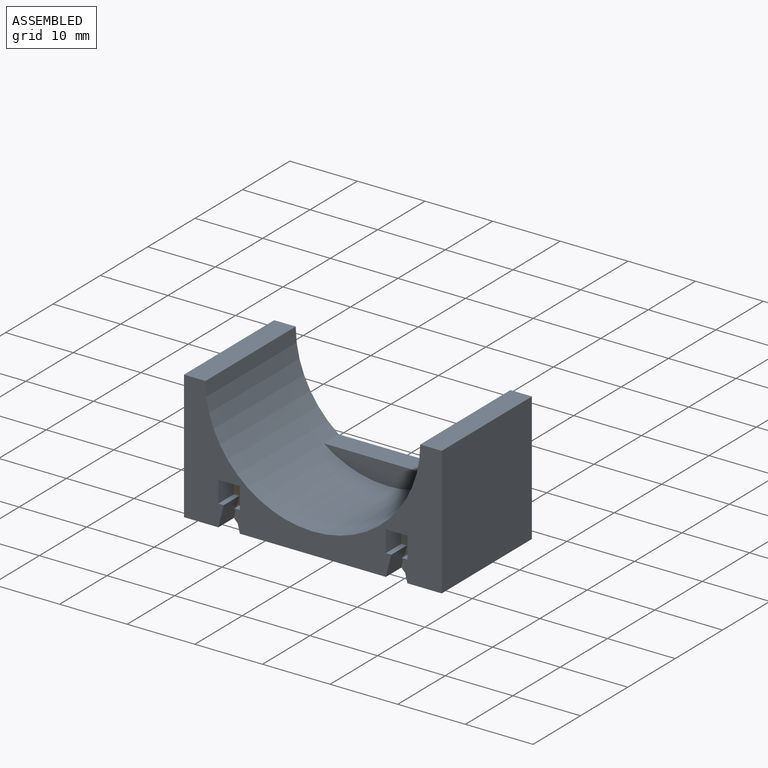
[diagram: assembled view]
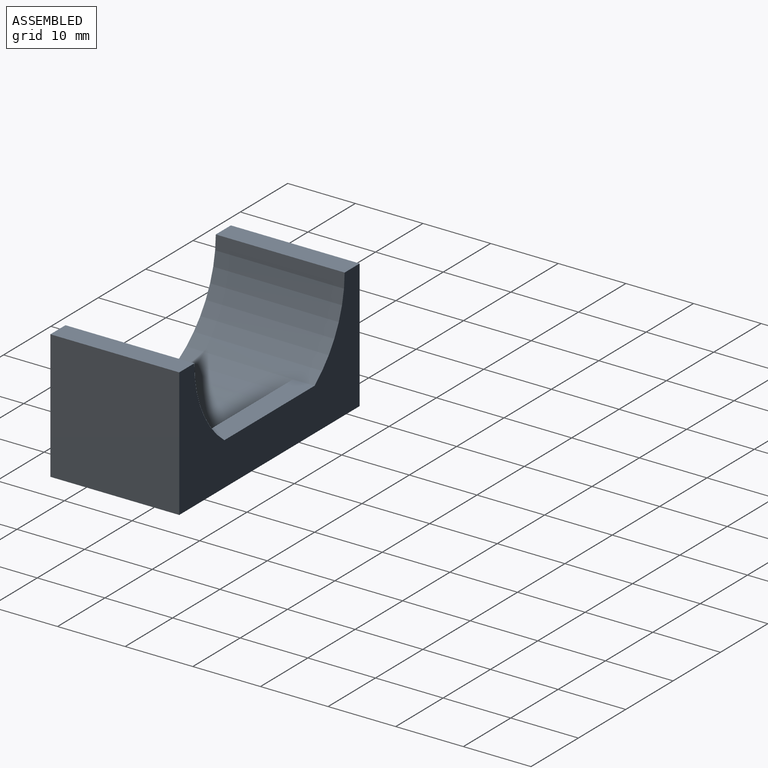
[diagram: assembled view, second angle]
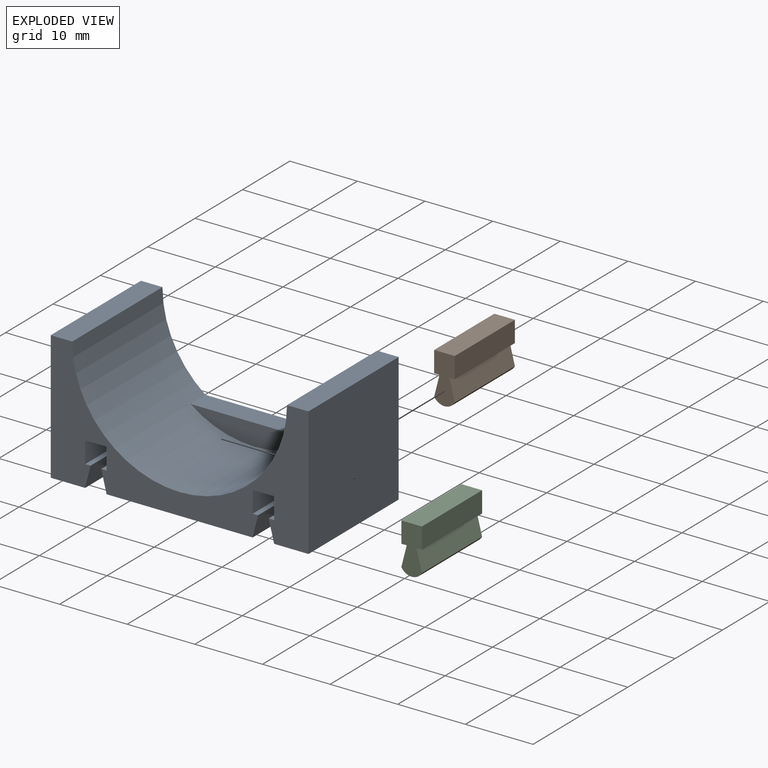
[diagram: exploded view]
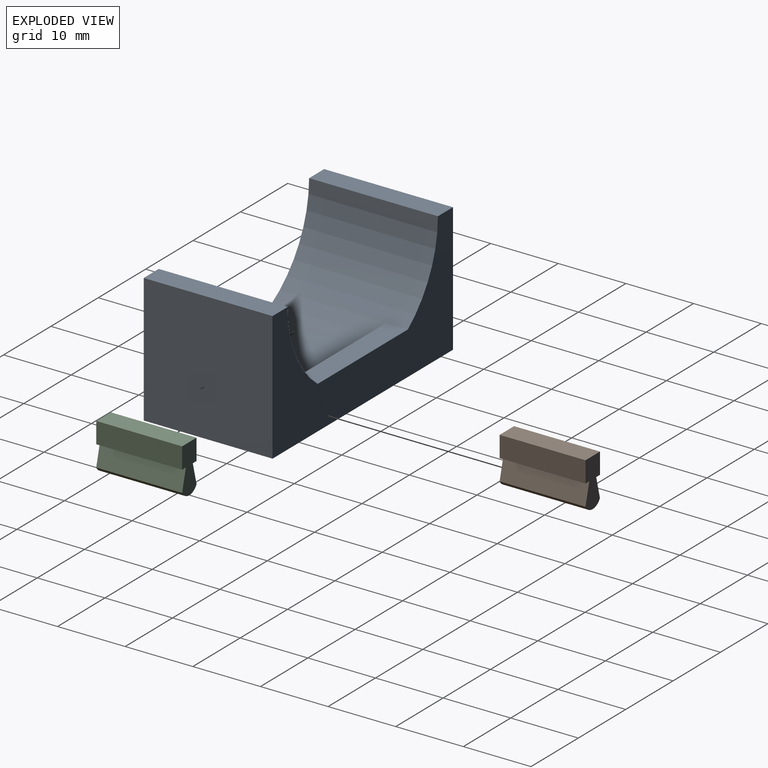
[diagram: exploded view, second angle]
ASSEMBLY  parts=3 mates=2
PART A: 26 faces, bbox 38.1x19.1x19.1 mm
  f0: plane 38.1x19.05mm, normal (0,-1,0), area 294.7mm2, adj f1,f2,f3,f4,f5,f6,f8,f9
  f1: cylinder r=15.88mm len=31.75mm, axis (0,1,0), area 885.2mm2, adj f0,f2,f6,f7,f24,f25
  f2: plane 19.05x3.18mm, normal (0,0,1), area 60.5mm2, adj f0,f1,f3,f7
  f3: plane 19.05x19.05mm, normal (-1,0,0), area 362.9mm2, adj f0,f2,f4,f7
  f4: plane 38.1x19.05mm, normal (0,0,-1), area 625mm2, adj f0,f3,f5,f7,f8,f14,f15,f16
  f5: plane 19.05x19.05mm, normal (1,0,0), area 362.9mm2, adj f0,f4,f6,f7
  f6: plane 19.05x3.18mm, normal (0,0,1), area 60.5mm2, adj f0,f1,f5,f7
  f7: plane 38.1x19.05mm, normal (0,1,0), area 371.1mm2, adj f1,f2,f3,f4,f5,f6,f24
  f8: plane 15.88x3.18mm, normal (-0.97,0,-0.24), area 52mm2, adj f0,f4,f9,f15
  f9: plane 15.88x0.79mm, normal (0,0,1), area 12.6mm2, adj f0,f8,f10,f15
  f10: plane 15.88x3.18mm, normal (-1,0,0), area 50.4mm2, adj f0,f9,f11,f15
  f11: plane 15.88x3.18mm, normal (0,0,-1), area 50.4mm2, adj f0,f10,f12,f15
  f12: plane 15.88x3.18mm, normal (1,0,0), area 50.4mm2, adj f0,f11,f13,f15
  f13: plane 15.88x0.79mm, normal (0,0,1), area 12.6mm2, adj f0,f12,f14,f15
  f14: plane 15.88x3.18mm, normal (0.97,0,-0.24), area 52mm2, adj f0,f4,f13,f15
  f15: plane 6.35x3.18mm, normal (0,-1,0), area 17.6mm2, adj f4,f8,f9,f10,f11,f12,f13,f14
  f16: plane 15.88x3.18mm, normal (0.97,0,-0.24), area 52mm2, adj f0,f4,f22,f23
  f17: plane 15.88x3.18mm, normal (-0.97,0,-0.24), area 52mm2, adj f0,f4,f18,f23
  f18: plane 15.88x0.79mm, normal (0,0,1), area 12.6mm2, adj f0,f17,f19,f23
  f19: plane 15.88x3.18mm, normal (-1,0,0), area 50.4mm2, adj f0,f18,f20,f23
  f20: plane 15.88x3.18mm, normal (0,0,-1), area 50.4mm2, adj f0,f19,f21,f23
  f21: plane 15.88x3.18mm, normal (1,0,0), area 50.4mm2, adj f0,f20,f22,f23
  f22: plane 15.88x0.79mm, normal (0,0,1), area 12.6mm2, adj f0,f16,f21,f23
  f23: plane 6.35x3.18mm, normal (0,-1,0), area 17.6mm2, adj f4,f16,f17,f18,f19,f20,f21,f22
  f24: plane 19.05x3.18mm, normal (0,0,1), area 60.5mm2, adj f1,f7,f25
  f25: plane 19.05x3.18mm, normal (0,-1,0), area 41.2mm2, adj f1,f24
PART B: 10 faces, bbox 3x7.1x12.7 mm
  f0: plane 12.7x3.11mm, normal (-0.97,0.25,0), area 40.8mm2, adj f1,f7,f8,f9
  f1: cylinder r=1.75mm len=12.7mm, axis (0,0,-1), area 47mm2, adj f0,f2,f8,f9
  f2: plane 12.7x3.11mm, normal (0.97,0.25,0), area 40.8mm2, adj f1,f3,f8,f9
  f3: plane 12.7x0.79mm, normal (0,-1,0), area 10.1mm2, adj f2,f4,f8,f9
  f4: plane 12.7x3.11mm, normal (1,0,0), area 39.5mm2, adj f3,f5,f8,f9
  f5: plane 12.7x3.05mm, normal (0,1,0), area 38.7mm2, adj f4,f6,f8,f9
  f6: plane 12.7x3.11mm, normal (-1,0,0), area 39.5mm2, adj f5,f7,f8,f9
  f7: plane 12.7x0.79mm, normal (0,-1,0), area 10.1mm2, adj f0,f6,f8,f9
  f8: plane 7.11x3.05mm, normal (0,0,1), area 18.4mm2, adj f0,f1,f2,f3,f4,f5,f6,f7
  f9: plane 7.11x3.05mm, normal (0,0,-1), area 18.4mm2, adj f0,f1,f2,f3,f4,f5,f6,f7
PART C: same geometry as B
PLACE A t=(-11.11,-4.45,-2.66)mm
PLACE B rot(axis=(0,0.71,0.71),180deg) t=(-25.02,-20.33,-15.36)mm
PLACE C rot(axis=(0,0.71,0.71),180deg) t=(-0.25,-20.33,-15.36)mm
MATE fastened C.f8 <-> A.f15  axis (0,1,0) through (1.27,-7.63,-15.36)mm
MATE fastened B.f8 <-> A.f23  axis (0,1,0) through (-23.49,-7.63,-15.36)mm
